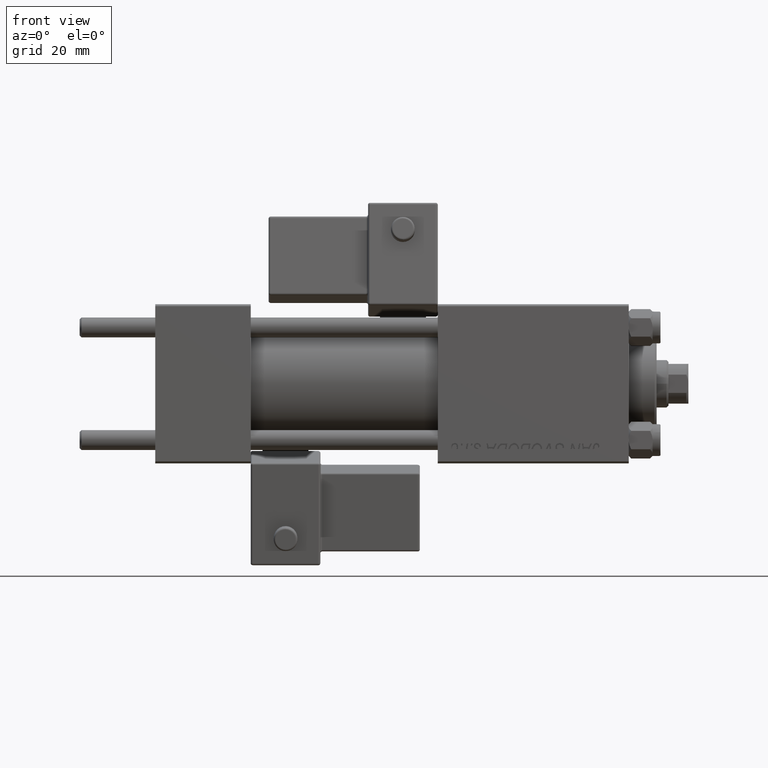
[diagram: clean part render]
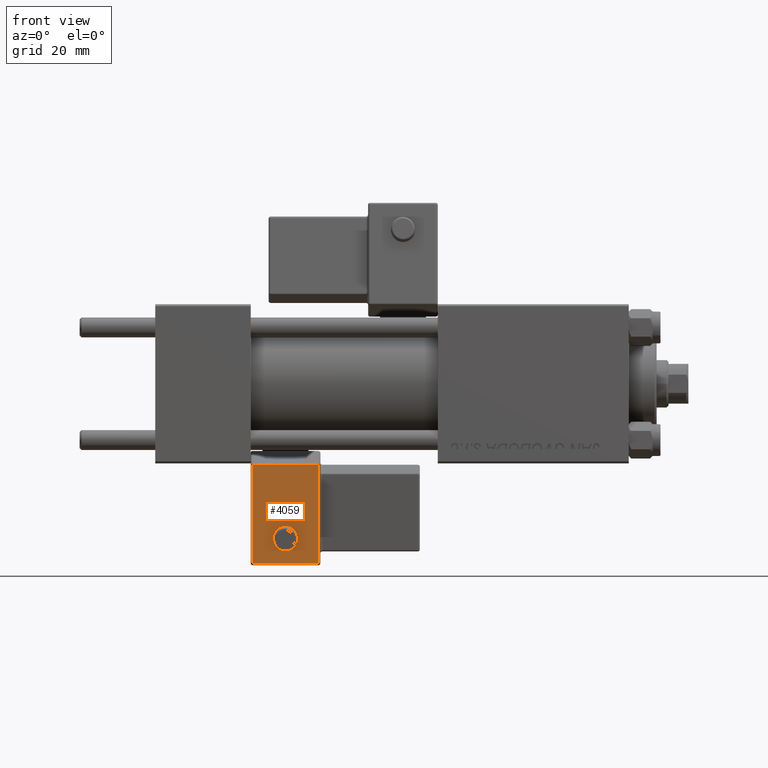
[diagram: same view with one face highlighted and labeled with its STEP entity id]
A machine part, front view. The second image highlights one B-rep face of the part: STEP entity #4059.
In plain terms, the highlighted planar face has unit normal (0, 0.9902, 0.1399).
Its self-contained STEP definition (entity closure, byte-faithful):
#161 = EDGE_CURVE ( 'NONE', #12773, #20812, #48763, .T. ) ;
#2985 = VECTOR ( 'NONE', #8216, 1000.000000000000000 ) ;
#3000 = DIRECTION ( 'NONE',  ( 0.000000000000000000, -0.000000000000000000, 1.000000000000000000 ) ) ;
#4059 = ADVANCED_FACE ( 'NONE', ( #6959, #11413 ), #27729, .F. ) ;
#5404 = VERTEX_POINT ( 'NONE', #26971 ) ;
#6807 = DIRECTION ( 'NONE',  ( -0.000000000000000000, -1.000000000000000000, -0.000000000000000000 ) ) ;
#6959 = FACE_OUTER_BOUND ( 'NONE', #47914, .T. ) ;
#7724 = ORIENTED_EDGE ( 'NONE', *, *, #50724, .F. ) ;
#8216 = DIRECTION ( 'NONE',  ( -1.334402673828313093E-16, 0.000000000000000000, -1.000000000000000000 ) ) ;
#9550 = CARTESIAN_POINT ( 'NONE',  ( 8.250000000000003553, -32.75000000000000000, -0.5000000000000002220 ) ) ;
#10634 = LINE ( 'NONE', #26696, #26832 ) ;
#11413 = FACE_BOUND ( 'NONE', #47336, .T. ) ;
#12281 = DIRECTION ( 'NONE',  ( -1.334402673828313339E-16, 0.000000000000000000, 1.000000000000000000 ) ) ;
#12773 = VERTEX_POINT ( 'NONE', #50353 ) ;
#12885 = DIRECTION ( 'NONE',  ( 1.000000000000000000, 0.000000000000000000, 0.000000000000000000 ) ) ;
#13148 = CARTESIAN_POINT ( 'NONE',  ( 0.000000000000000000, -32.75000000000000000, -0.5000000000000002220 ) ) ;
#14110 = EDGE_CURVE ( 'NONE', #5404, #12773, #10634, .T. ) ;
#14689 = CARTESIAN_POINT ( 'NONE',  ( -4.336808689942017736E-16, -32.75000000000000000, 6.000000000000001776 ) ) ;
#16115 = CARTESIAN_POINT ( 'NONE',  ( -8.250000000000003553, -32.75000000000000000, 1.100882205908358788E-15 ) ) ;
#19395 = LINE ( 'NONE', #36256, #46264 ) ;
#20131 = EDGE_CURVE ( 'NONE', #30151, #22843, #48851, .T. ) ;
#20812 = VERTEX_POINT ( 'NONE', #47667 ) ;
#22344 = VECTOR ( 'NONE', #12885, 1000.000000000000000 ) ;
#22380 = CARTESIAN_POINT ( 'NONE',  ( -4.336808689942017736E-16, -32.75000000000000000, 6.000000000000001776 ) ) ;
#22843 = VERTEX_POINT ( 'NONE', #50363 ) ;
#23518 = CARTESIAN_POINT ( 'NONE',  ( 0.000000000000000000, -32.75000000000000000, 0.000000000000000000 ) ) ;
#26696 = CARTESIAN_POINT ( 'NONE',  ( 4.857225732735059864E-15, -32.75000000000000000, 24.50000000000000000 ) ) ;
#26832 = VECTOR ( 'NONE', #30389, 1000.000000000000000 ) ;
#26971 = CARTESIAN_POINT ( 'NONE',  ( 8.250000000000000000, -32.75000000000000000, 24.50000000000000000 ) ) ;
#27729 = PLANE ( 'NONE',  #51852 ) ;
#27925 = ORIENTED_EDGE ( 'NONE', *, *, #44007, .T. ) ;
#30151 = VERTEX_POINT ( 'NONE', #36982 ) ;
#30389 = DIRECTION ( 'NONE',  ( -1.000000000000000000, 0.000000000000000000, 1.982541115402065110E-16 ) ) ;
#31796 = DIRECTION ( 'NONE',  ( 0.000000000000000000, 0.000000000000000000, 1.000000000000000000 ) ) ;
#33417 = LINE ( 'NONE', #13148, #22344 ) ;
#34328 = ORIENTED_EDGE ( 'NONE', *, *, #161, .T. ) ;
#35196 = EDGE_CURVE ( 'NONE', #20812, #42091, #33417, .T. ) ;
#36256 = CARTESIAN_POINT ( 'NONE',  ( 8.250000000000003553, -32.75000000000000000, 1.100882205908358986E-15 ) ) ;
#36982 = CARTESIAN_POINT ( 'NONE',  ( -6.628682924999581145E-17, -32.75000000000000000, 3.000000000000001776 ) ) ;
#38805 = CIRCLE ( 'NONE', #44688, 2.999999999999999112 ) ;
#40430 = AXIS2_PLACEMENT_3D ( 'NONE', #14689, #6807, #31796 ) ;
#42091 = VERTEX_POINT ( 'NONE', #9550 ) ;
#43538 = DIRECTION ( 'NONE',  ( 0.000000000000000000, 1.000000000000000000, 0.000000000000000000 ) ) ;
#44007 = EDGE_CURVE ( 'NONE', #42091, #5404, #19395, .T. ) ;
#44688 = AXIS2_PLACEMENT_3D ( 'NONE', #22380, #50314, #50565 ) ;
#46264 = VECTOR ( 'NONE', #12281, 1000.000000000000000 ) ;
#47336 = EDGE_LOOP ( 'NONE', ( #7724, #50626 ) ) ;
#47667 = CARTESIAN_POINT ( 'NONE',  ( -8.250000000000003553, -32.75000000000000000, -0.5000000000000002220 ) ) ;
#47914 = EDGE_LOOP ( 'NONE', ( #50103, #34328, #48530, #27925 ) ) ;
#48530 = ORIENTED_EDGE ( 'NONE', *, *, #35196, .T. ) ;
#48763 = LINE ( 'NONE', #16115, #2985 ) ;
#48851 = CIRCLE ( 'NONE', #40430, 2.999999999999999112 ) ;
#50103 = ORIENTED_EDGE ( 'NONE', *, *, #14110, .T. ) ;
#50314 = DIRECTION ( 'NONE',  ( -0.000000000000000000, -1.000000000000000000, -0.000000000000000000 ) ) ;
#50353 = CARTESIAN_POINT ( 'NONE',  ( -8.250000000000000000, -32.75000000000000000, 24.50000000000000355 ) ) ;
#50363 = CARTESIAN_POINT ( 'NONE',  ( -4.336808689942017736E-16, -32.75000000000000000, 9.000000000000001776 ) ) ;
#50565 = DIRECTION ( 'NONE',  ( 0.000000000000000000, 0.000000000000000000, 1.000000000000000000 ) ) ;
#50626 = ORIENTED_EDGE ( 'NONE', *, *, #20131, .F. ) ;
#50724 = EDGE_CURVE ( 'NONE', #22843, #30151, #38805, .T. ) ;
#51852 = AXIS2_PLACEMENT_3D ( 'NONE', #23518, #43538, #3000 ) ;